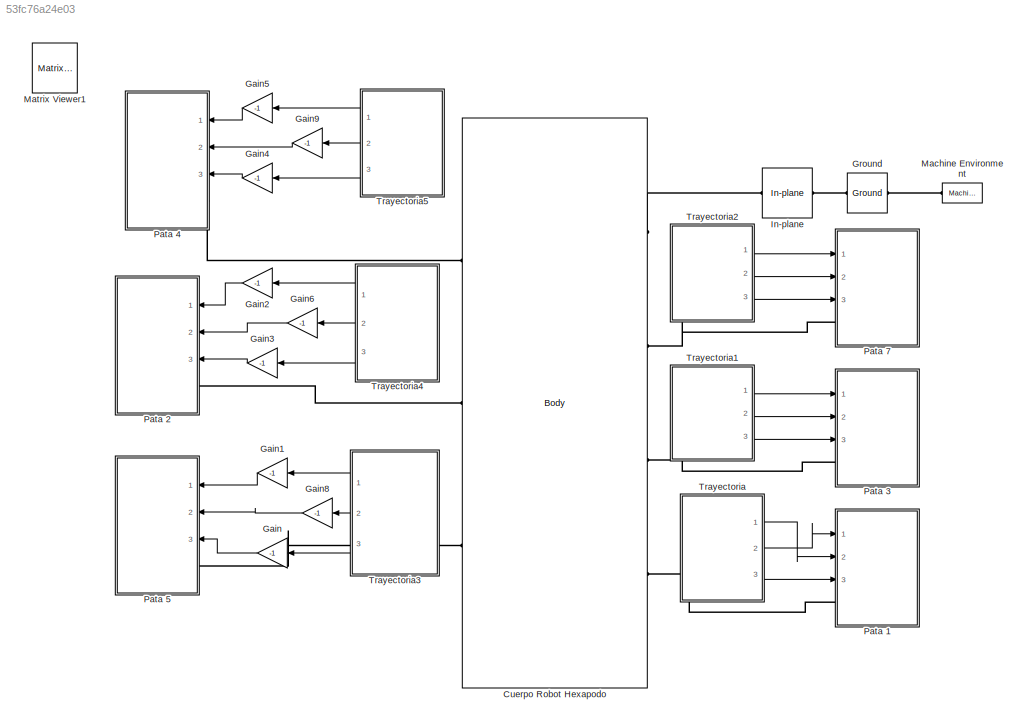
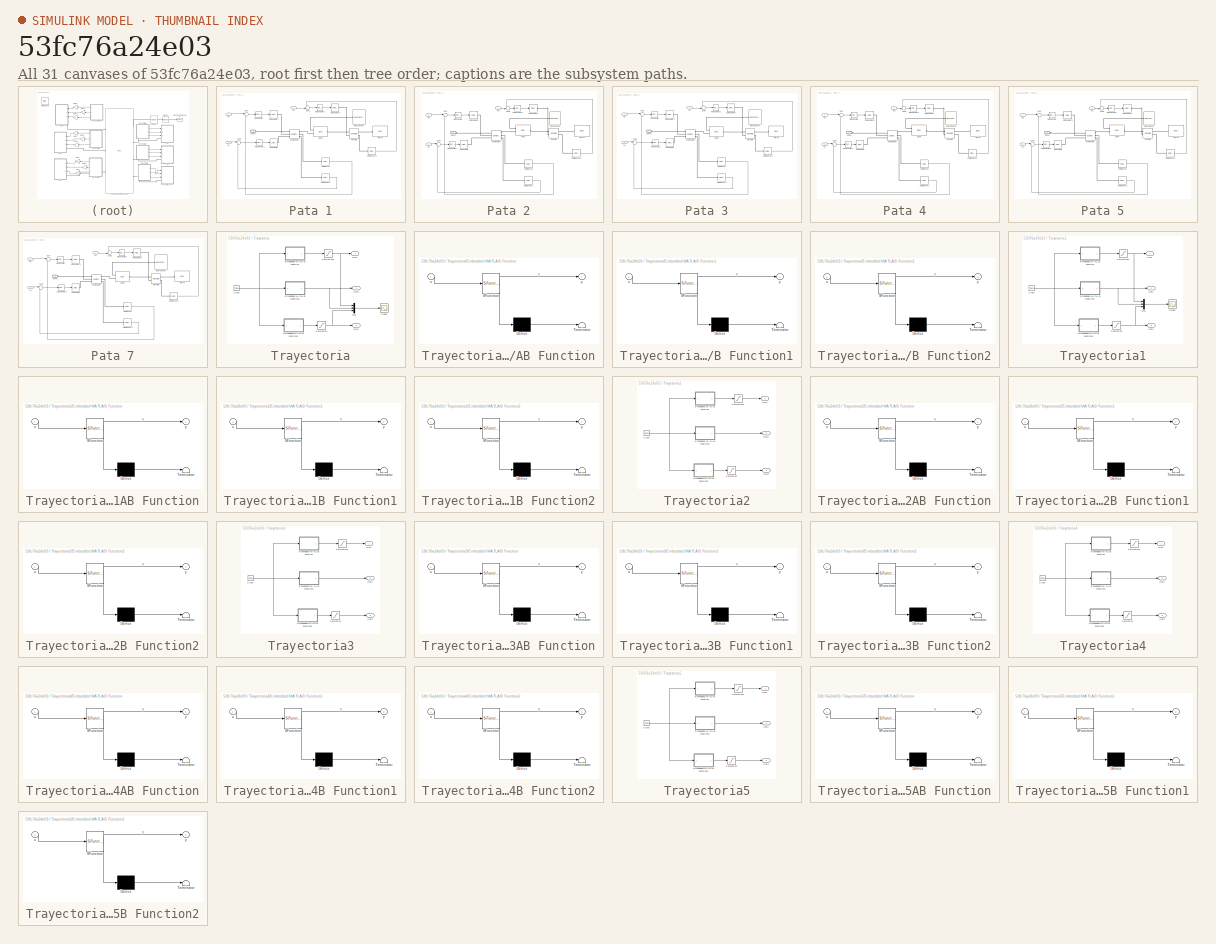
[diagram: thumbnail index - all 31 canvases of the model, root first then tree order]
MODEL slx_53fc76a24e03
KIND model
CONFIG AbsTol = auto
CONFIG EnableMultiTasking = on
CONFIG FixedStep = auto
CONFIG MaxStep = auto
CONFIG MinStep = auto
CONFIG RelTol = 1e-3
CONFIG SampleTimeConstraint = Unconstrained
CONFIG Solver = ode45
CONFIG SolverName = ode45
CONFIG StartTime = 0.0
CONFIG StopTime = inf
BLOCK [Reference] Cuerpo Robot Hexapodo  REF=mblibv1/Bodies/Body
  Ports = [0, 0, 0, 0, 0, 3, 4]
  SourceBlock = mblibv1/Bodies/Body
  SourceProductBaseCode = SS
  SourceProductName = Simscape
  SourceType = Body
BLOCK [Gain] Gain
  Gain = -1
  OutDataTypeStr = Inherit: Inherit via internal rule
  ParamDataTypeStr = Inherit: Inherit via internal rule
  SaturateOnIntegerOverflow = off
BLOCK [Gain] Gain1
  Gain = -1
  OutDataTypeStr = Inherit: Inherit via internal rule
  ParamDataTypeStr = Inherit: Inherit via internal rule
  SaturateOnIntegerOverflow = off
BLOCK [Gain] Gain2
  Gain = -1
  OutDataTypeStr = Inherit: Inherit via internal rule
  ParamDataTypeStr = Inherit: Inherit via internal rule
  SaturateOnIntegerOverflow = off
BLOCK [Gain] Gain3
  Gain = -1
  OutDataTypeStr = Inherit: Inherit via internal rule
  ParamDataTypeStr = Inherit: Inherit via internal rule
  SaturateOnIntegerOverflow = off
BLOCK [Gain] Gain4
  Gain = -1
  OutDataTypeStr = Inherit: Inherit via internal rule
  ParamDataTypeStr = Inherit: Inherit via internal rule
  SaturateOnIntegerOverflow = off
BLOCK [Gain] Gain5
  Gain = -1
  OutDataTypeStr = Inherit: Inherit via internal rule
  ParamDataTypeStr = Inherit: Inherit via internal rule
  SaturateOnIntegerOverflow = off
BLOCK [Gain] Gain6
  Gain = -1
  OutDataTypeStr = Inherit: Inherit via internal rule
  ParamDataTypeStr = Inherit: Inherit via internal rule
  SaturateOnIntegerOverflow = off
BLOCK [Gain] Gain8
  Gain = -1
  OutDataTypeStr = Inherit: Inherit via internal rule
  ParamDataTypeStr = Inherit: Inherit via internal rule
  SaturateOnIntegerOverflow = off
BLOCK [Gain] Gain9
  Gain = -1
  OutDataTypeStr = Inherit: Inherit via internal rule
  ParamDataTypeStr = Inherit: Inherit via internal rule
  SaturateOnIntegerOverflow = off
BLOCK [Reference] Ground  REF=mblibv1/Bodies/Ground
  Ports = [0, 0, 0, 0, 0, 1, 1]
  SourceBlock = mblibv1/Bodies/Ground
  SourceProductBaseCode = SS
  SourceProductName = Simscape
  SourceType = Ground
  UserDataPersistent = on
BLOCK [Reference] In-plane  REF=mblibv1/Joints/In-plane
  Ports = [0, 0, 0, 0, 0, 1, 1]
  SourceBlock = mblibv1/Joints/In-plane
  SourceProductBaseCode = SS
  SourceProductName = Simscape
  SourceType = In-plane
BLOCK [Reference] Machine Environment  REF=mblibv1/Bodies/Machine
Environment
  Ports = [0, 0, 0, 0, 0, 0, 1]
  SourceBlock = mblibv1/Bodies/Machine\nEnvironment
  SourceProductBaseCode = SS
  SourceProductName = Simscape
  SourceType = Machine Environment
BLOCK [Reference] Matrix Viewer1  REF=dspsnks4/Matrix
Viewer
  IOType = viewer
  Ports = [1]
  SourceBlock = dspsnks4/Matrix\nViewer
  SourceProductBaseCode = DS
  SourceProductName = DSP System Toolbox
  SourceType = Matrix Viewer
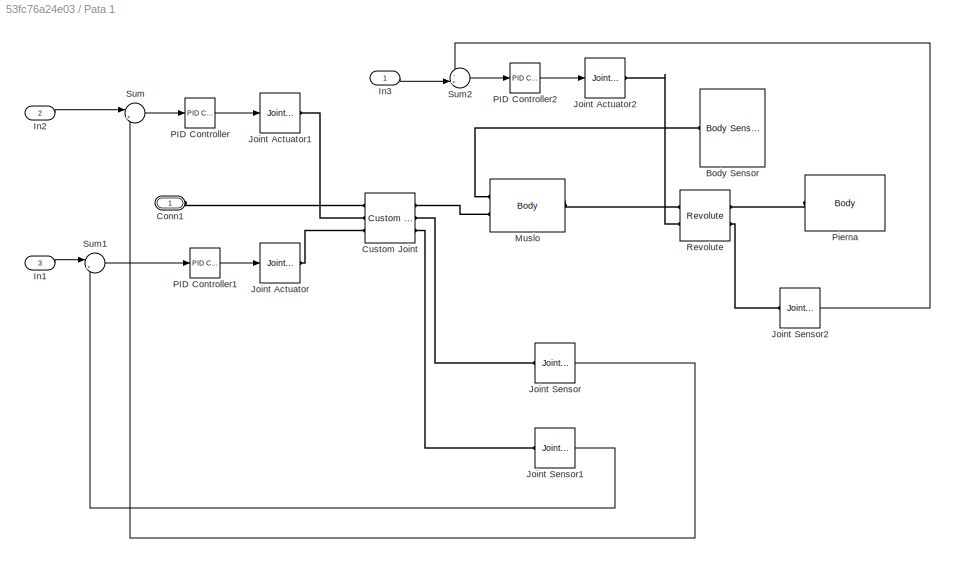
BLOCK [SubSystem] Pata 1
  Ports = [3, 0, 0, 0, 0, 1]
  RequestExecContextInheritance = off
BLOCK [Reference] Pata 1/Body Sensor  REF=mblibv1/Sensors & 
Actuators/Body Sensor
  Ports = [0, 2, 0, 0, 0, 1]
  SourceBlock = mblibv1/Sensors & \nActuators/Body Sensor
  SourceProductBaseCode = SS
  SourceProductName = Simscape
  SourceType = Body Sensor
BLOCK [PMIOPort] Pata 1/Conn1
  Side = Left
BLOCK [Reference] Pata 1/Custom Joint  REF=mblibv1/Joints/Custom Joint
  Ports = [0, 0, 0, 0, 0, 3, 3]
  SourceBlock = mblibv1/Joints/Custom Joint
  SourceProductBaseCode = SS
  SourceProductName = Simscape
  SourceType = Custom Joint
BLOCK [Inport] Pata 1/In1
  IconDisplay = Port number
  Port = 3
BLOCK [Inport] Pata 1/In2
  IconDisplay = Port number
  Port = 2
BLOCK [Inport] Pata 1/In3
  IconDisplay = Port number
BLOCK [Reference] Pata 1/Joint Actuator  REF=mblibv1/Sensors & 
Actuators/Joint Actuator
  Ports = [1, 0, 0, 0, 0, 0, 1]
  SourceBlock = mblibv1/Sensors & \nActuators/Joint Actuator
  SourceProductBaseCode = SS
  SourceProductName = Simscape
  SourceType = Joint Actuator
BLOCK [Reference] Pata 1/Joint Actuator1  REF=mblibv1/Sensors & 
Actuators/Joint Actuator
  Ports = [1, 0, 0, 0, 0, 0, 1]
  SourceBlock = mblibv1/Sensors & \nActuators/Joint Actuator
  SourceProductBaseCode = SS
  SourceProductName = Simscape
  SourceType = Joint Actuator
BLOCK [Reference] Pata 1/Joint Actuator2  REF=mblibv1/Sensors & 
Actuators/Joint Actuator
  Ports = [1, 0, 0, 0, 0, 0, 1]
  SourceBlock = mblibv1/Sensors & \nActuators/Joint Actuator
  SourceProductBaseCode = SS
  SourceProductName = Simscape
  SourceType = Joint Actuator
BLOCK [Reference] Pata 1/Joint Sensor  REF=mblibv1/Sensors & 
Actuators/Joint Sensor
  Ports = [0, 1, 0, 0, 0, 1]
  SourceBlock = mblibv1/Sensors & \nActuators/Joint Sensor
  SourceProductBaseCode = SS
  SourceProductName = Simscape
  SourceType = Joint Sensor
BLOCK [Reference] Pata 1/Joint Sensor1  REF=mblibv1/Sensors & 
Actuators/Joint Sensor
  Ports = [0, 1, 0, 0, 0, 1]
  SourceBlock = mblibv1/Sensors & \nActuators/Joint Sensor
  SourceProductBaseCode = SS
  SourceProductName = Simscape
  SourceType = Joint Sensor
BLOCK [Reference] Pata 1/Joint Sensor2  REF=mblibv1/Sensors & 
Actuators/Joint Sensor
  Ports = [0, 1, 0, 0, 0, 1]
  SourceBlock = mblibv1/Sensors & \nActuators/Joint Sensor
  SourceProductBaseCode = SS
  SourceProductName = Simscape
  SourceType = Joint Sensor
BLOCK [Reference] Pata 1/Muslo  REF=mblibv1/Bodies/Body
  Ports = [0, 0, 0, 0, 0, 2, 1]
  SourceBlock = mblibv1/Bodies/Body
  SourceProductBaseCode = SS
  SourceProductName = Simscape
  SourceType = Body
BLOCK [Reference] Pata 1/PID Controller  REF=simulink_need_slupdate/PID Controller
  Ports = [1, 1]
  SourceBlock = simulink_need_slupdate/PID Controller
  SourceProductBaseCode = SL
  SourceProductName = Simulink
  SourceType = PID Controller
BLOCK [Reference] Pata 1/PID Controller1  REF=simulink_need_slupdate/PID Controller
  Ports = [1, 1]
  SourceBlock = simulink_need_slupdate/PID Controller
  SourceProductBaseCode = SL
  SourceProductName = Simulink
  SourceType = PID Controller
BLOCK [Reference] Pata 1/PID Controller2  REF=simulink_need_slupdate/PID Controller
  Ports = [1, 1]
  SourceBlock = simulink_need_slupdate/PID Controller
  SourceProductBaseCode = SL
  SourceProductName = Simulink
  SourceType = PID Controller
BLOCK [Reference] Pata 1/Pierna  REF=mblibv1/Bodies/Body
  Ports = [0, 0, 0, 0, 0, 1]
  SourceBlock = mblibv1/Bodies/Body
  SourceProductBaseCode = SS
  SourceProductName = Simscape
  SourceType = Body
BLOCK [Reference] Pata 1/Revolute  REF=mblibv1/Joints/Revolute
  Ports = [0, 0, 0, 0, 0, 2, 2]
  SourceBlock = mblibv1/Joints/Revolute
  SourceProductBaseCode = SS
  SourceProductName = Simscape
  SourceType = Revolute
BLOCK [Sum] Pata 1/Sum
  IconShape = round
  InputSameDT = off
  Inputs = |+-
  OutDataTypeStr = Inherit: Inherit via internal rule
  Ports = [2, 1]
  SaturateOnIntegerOverflow = off
BLOCK [Sum] Pata 1/Sum1
  IconShape = round
  InputSameDT = off
  Inputs = |+-
  OutDataTypeStr = Inherit: Inherit via internal rule
  Ports = [2, 1]
  SaturateOnIntegerOverflow = off
BLOCK [Sum] Pata 1/Sum2
  IconShape = round
  InputSameDT = off
  Inputs = -+|
  OutDataTypeStr = Inherit: Inherit via internal rule
  Ports = [2, 1]
  SaturateOnIntegerOverflow = off
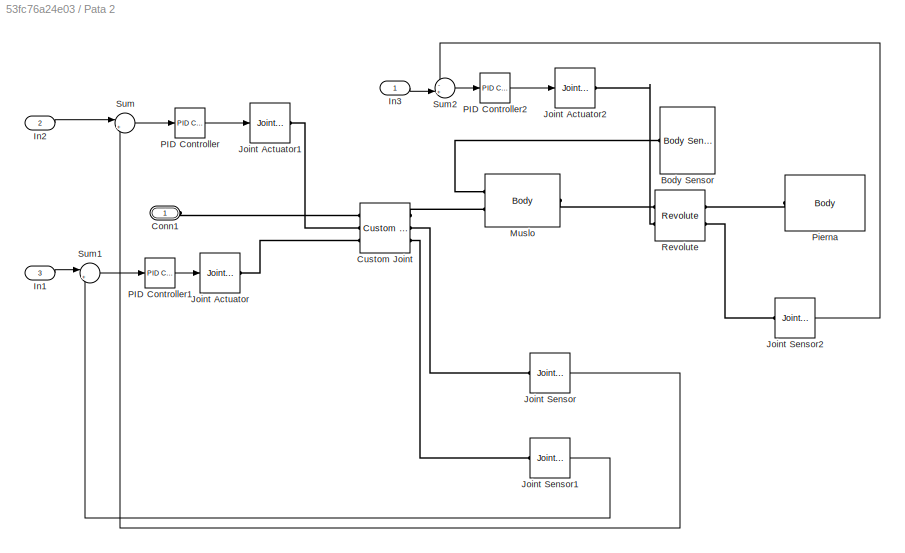
BLOCK [SubSystem] Pata 2
  Ports = [3, 0, 0, 0, 0, 1]
  RequestExecContextInheritance = off
BLOCK [Reference] Pata 2/Body Sensor  REF=mblibv1/Sensors & 
Actuators/Body Sensor
  Ports = [0, 2, 0, 0, 0, 1]
  SourceBlock = mblibv1/Sensors & \nActuators/Body Sensor
  SourceProductBaseCode = SS
  SourceProductName = Simscape
  SourceType = Body Sensor
BLOCK [PMIOPort] Pata 2/Conn1
  Side = Left
BLOCK [Reference] Pata 2/Custom Joint  REF=mblibv1/Joints/Custom Joint
  Ports = [0, 0, 0, 0, 0, 3, 3]
  SourceBlock = mblibv1/Joints/Custom Joint
  SourceProductBaseCode = SS
  SourceProductName = Simscape
  SourceType = Custom Joint
BLOCK [Inport] Pata 2/In1
  IconDisplay = Port number
  Port = 3
BLOCK [Inport] Pata 2/In2
  IconDisplay = Port number
  Port = 2
BLOCK [Inport] Pata 2/In3
  IconDisplay = Port number
BLOCK [Reference] Pata 2/Joint Actuator  REF=mblibv1/Sensors & 
Actuators/Joint Actuator
  Ports = [1, 0, 0, 0, 0, 0, 1]
  SourceBlock = mblibv1/Sensors & \nActuators/Joint Actuator
  SourceProductBaseCode = SS
  SourceProductName = Simscape
  SourceType = Joint Actuator
BLOCK [Reference] Pata 2/Joint Actuator1  REF=mblibv1/Sensors & 
Actuators/Joint Actuator
  Ports = [1, 0, 0, 0, 0, 0, 1]
  SourceBlock = mblibv1/Sensors & \nActuators/Joint Actuator
  SourceProductBaseCode = SS
  SourceProductName = Simscape
  SourceType = Joint Actuator
BLOCK [Reference] Pata 2/Joint Actuator2  REF=mblibv1/Sensors & 
Actuators/Joint Actuator
  Ports = [1, 0, 0, 0, 0, 0, 1]
  SourceBlock = mblibv1/Sensors & \nActuators/Joint Actuator
  SourceProductBaseCode = SS
  SourceProductName = Simscape
  SourceType = Joint Actuator
BLOCK [Reference] Pata 2/Joint Sensor  REF=mblibv1/Sensors & 
Actuators/Joint Sensor
  Ports = [0, 1, 0, 0, 0, 1]
  SourceBlock = mblibv1/Sensors & \nActuators/Joint Sensor
  SourceProductBaseCode = SS
  SourceProductName = Simscape
  SourceType = Joint Sensor
BLOCK [Reference] Pata 2/Joint Sensor1  REF=mblibv1/Sensors & 
Actuators/Joint Sensor
  Ports = [0, 1, 0, 0, 0, 1]
  SourceBlock = mblibv1/Sensors & \nActuators/Joint Sensor
  SourceProductBaseCode = SS
  SourceProductName = Simscape
  SourceType = Joint Sensor
BLOCK [Reference] Pata 2/Joint Sensor2  REF=mblibv1/Sensors & 
Actuators/Joint Sensor
  Ports = [0, 1, 0, 0, 0, 1]
  SourceBlock = mblibv1/Sensors & \nActuators/Joint Sensor
  SourceProductBaseCode = SS
  SourceProductName = Simscape
  SourceType = Joint Sensor
BLOCK [Reference] Pata 2/Muslo  REF=mblibv1/Bodies/Body
  Ports = [0, 0, 0, 0, 0, 2, 1]
  SourceBlock = mblibv1/Bodies/Body
  SourceProductBaseCode = SS
  SourceProductName = Simscape
  SourceType = Body
BLOCK [Reference] Pata 2/PID Controller  REF=simulink_need_slupdate/PID Controller
  Ports = [1, 1]
  SourceBlock = simulink_need_slupdate/PID Controller
  SourceProductBaseCode = SL
  SourceProductName = Simulink
  SourceType = PID Controller
BLOCK [Reference] Pata 2/PID Controller1  REF=simulink_need_slupdate/PID Controller
  Ports = [1, 1]
  SourceBlock = simulink_need_slupdate/PID Controller
  SourceProductBaseCode = SL
  SourceProductName = Simulink
  SourceType = PID Controller
BLOCK [Reference] Pata 2/PID Controller2  REF=simulink_need_slupdate/PID Controller
  Ports = [1, 1]
  SourceBlock = simulink_need_slupdate/PID Controller
  SourceProductBaseCode = SL
  SourceProductName = Simulink
  SourceType = PID Controller
BLOCK [Reference] Pata 2/Pierna  REF=mblibv1/Bodies/Body
  Ports = [0, 0, 0, 0, 0, 1]
  SourceBlock = mblibv1/Bodies/Body
  SourceProductBaseCode = SS
  SourceProductName = Simscape
  SourceType = Body
BLOCK [Reference] Pata 2/Revolute  REF=mblibv1/Joints/Revolute
  Ports = [0, 0, 0, 0, 0, 2, 2]
  SourceBlock = mblibv1/Joints/Revolute
  SourceProductBaseCode = SS
  SourceProductName = Simscape
  SourceType = Revolute
BLOCK [Sum] Pata 2/Sum
  IconShape = round
  InputSameDT = off
  Inputs = |+-
  OutDataTypeStr = Inherit: Inherit via internal rule
  Ports = [2, 1]
  SaturateOnIntegerOverflow = off
BLOCK [Sum] Pata 2/Sum1
  IconShape = round
  InputSameDT = off
  Inputs = |+-
  OutDataTypeStr = Inherit: Inherit via internal rule
  Ports = [2, 1]
  SaturateOnIntegerOverflow = off
BLOCK [Sum] Pata 2/Sum2
  IconShape = round
  InputSameDT = off
  Inputs = -+|
  OutDataTypeStr = Inherit: Inherit via internal rule
  Ports = [2, 1]
  SaturateOnIntegerOverflow = off
BLOCK [SubSystem] Pata 3
  Ports = [3, 0, 0, 0, 0, 1]
  RequestExecContextInheritance = off
BLOCK [Reference] Pata 3/Body Sensor  REF=mblibv1/Sensors & 
Actuators/Body Sensor
  Ports = [0, 2, 0, 0, 0, 1]
  SourceBlock = mblibv1/Sensors & \nActuators/Body Sensor
  SourceProductBaseCode = SS
  SourceProductName = Simscape
  SourceType = Body Sensor
BLOCK [PMIOPort] Pata 3/Conn1
  Side = Left
BLOCK [Reference] Pata 3/Custom Joint  REF=mblibv1/Joints/Custom Joint
  Ports = [0, 0, 0, 0, 0, 3, 3]
  SourceBlock = mblibv1/Joints/Custom Joint
  SourceProductBaseCode = SS
  SourceProductName = Simscape
  SourceType = Custom Joint
BLOCK [Inport] Pata 3/In1
  IconDisplay = Port number
  Port = 3
BLOCK [Inport] Pata 3/In2
  IconDisplay = Port number
  Port = 2
BLOCK [Inport] Pata 3/In3
  IconDisplay = Port number
BLOCK [Reference] Pata 3/Joint Actuator  REF=mblibv1/Sensors & 
Actuators/Joint Actuator
  Ports = [1, 0, 0, 0, 0, 0, 1]
  SourceBlock = mblibv1/Sensors & \nActuators/Joint Actuator
  SourceProductBaseCode = SS
  SourceProductName = Simscape
  SourceType = Joint Actuator
BLOCK [Reference] Pata 3/Joint Actuator1  REF=mblibv1/Sensors & 
Actuators/Joint Actuator
  Ports = [1, 0, 0, 0, 0, 0, 1]
  SourceBlock = mblibv1/Sensors & \nActuators/Joint Actuator
  SourceProductBaseCode = SS
  SourceProductName = Simscape
  SourceType = Joint Actuator
BLOCK [Reference] Pata 3/Joint Actuator2  REF=mblibv1/Sensors & 
Actuators/Joint Actuator
  Ports = [1, 0, 0, 0, 0, 0, 1]
  SourceBlock = mblibv1/Sensors & \nActuators/Joint Actuator
  SourceProductBaseCode = SS
  SourceProductName = Simscape
  SourceType = Joint Actuator
BLOCK [Reference] Pata 3/Joint Sensor  REF=mblibv1/Sensors & 
Actuators/Joint Sensor
  Ports = [0, 1, 0, 0, 0, 1]
  SourceBlock = mblibv1/Sensors & \nActuators/Joint Sensor
  SourceProductBaseCode = SS
  SourceProductName = Simscape
  SourceType = Joint Sensor
BLOCK [Reference] Pata 3/Joint Sensor1  REF=mblibv1/Sensors & 
Actuators/Joint Sensor
  Ports = [0, 1, 0, 0, 0, 1]
  SourceBlock = mblibv1/Sensors & \nActuators/Joint Sensor
  SourceProductBaseCode = SS
  SourceProductName = Simscape
  SourceType = Joint Sensor
BLOCK [Reference] Pata 3/Joint Sensor2  REF=mblibv1/Sensors & 
Actuators/Joint Sensor
  Ports = [0, 1, 0, 0, 0, 1]
  SourceBlock = mblibv1/Sensors & \nActuators/Joint Sensor
  SourceProductBaseCode = SS
  SourceProductName = Simscape
  SourceType = Joint Sensor
BLOCK [Reference] Pata 3/Muslo  REF=mblibv1/Bodies/Body
  Ports = [0, 0, 0, 0, 0, 2, 1]
  SourceBlock = mblibv1/Bodies/Body
  SourceProductBaseCode = SS
  SourceProductName = Simscape
  SourceType = Body
BLOCK [Reference] Pata 3/PID Controller  REF=simulink_need_slupdate/PID Controller
  Ports = [1, 1]
  SourceBlock = simulink_need_slupdate/PID Controller
  SourceProductBaseCode = SL
  SourceProductName = Simulink
  SourceType = PID Controller
BLOCK [Reference] Pata 3/PID Controller1  REF=simulink_need_slupdate/PID Controller
  Ports = [1, 1]
  SourceBlock = simulink_need_slupdate/PID Controller
  SourceProductBaseCode = SL
  SourceProductName = Simulink
  SourceType = PID Controller
BLOCK [Reference] Pata 3/PID Controller2  REF=simulink_need_slupdate/PID Controller
  Ports = [1, 1]
  SourceBlock = simulink_need_slupdate/PID Controller
  SourceProductBaseCode = SL
  SourceProductName = Simulink
  SourceType = PID Controller
BLOCK [Reference] Pata 3/Pierna  REF=mblibv1/Bodies/Body
  Ports = [0, 0, 0, 0, 0, 1]
  SourceBlock = mblibv1/Bodies/Body
  SourceProductBaseCode = SS
  SourceProductName = Simscape
  SourceType = Body
BLOCK [Reference] Pata 3/Revolute  REF=mblibv1/Joints/Revolute
  Ports = [0, 0, 0, 0, 0, 2, 2]
  SourceBlock = mblibv1/Joints/Revolute
  SourceProductBaseCode = SS
  SourceProductName = Simscape
  SourceType = Revolute
BLOCK [Sum] Pata 3/Sum
  IconShape = round
  InputSameDT = off
  Inputs = |+-
  OutDataTypeStr = Inherit: Inherit via internal rule
  Ports = [2, 1]
  SaturateOnIntegerOverflow = off
BLOCK [Sum] Pata 3/Sum1
  IconShape = round
  InputSameDT = off
  Inputs = |+-
  OutDataTypeStr = Inherit: Inherit via internal rule
  Ports = [2, 1]
  SaturateOnIntegerOverflow = off
BLOCK [Sum] Pata 3/Sum2
  IconShape = round
  InputSameDT = off
  Inputs = -+|
  OutDataTypeStr = Inherit: Inherit via internal rule
  Ports = [2, 1]
  SaturateOnIntegerOverflow = off
BLOCK [SubSystem] Pata 4
  Ports = [3, 0, 0, 0, 0, 1]
  RequestExecContextInheritance = off
BLOCK [Reference] Pata 4/Body Sensor  REF=mblibv1/Sensors & 
Actuators/Body Sensor
  Ports = [0, 2, 0, 0, 0, 1]
  SourceBlock = mblibv1/Sensors & \nActuators/Body Sensor
  SourceProductBaseCode = SS
  SourceProductName = Simscape
  SourceType = Body Sensor
BLOCK [PMIOPort] Pata 4/Conn1
  Side = Left
BLOCK [Reference] Pata 4/Custom Joint  REF=mblibv1/Joints/Custom Joint
  Ports = [0, 0, 0, 0, 0, 3, 3]
  SourceBlock = mblibv1/Joints/Custom Joint
  SourceProductBaseCode = SS
  SourceProductName = Simscape
  SourceType = Custom Joint
BLOCK [Inport] Pata 4/In1
  IconDisplay = Port number
  Port = 3
BLOCK [Inport] Pata 4/In2
  IconDisplay = Port number
  Port = 2
BLOCK [Inport] Pata 4/In3
  IconDisplay = Port number
BLOCK [Reference] Pata 4/Joint Actuator  REF=mblibv1/Sensors & 
Actuators/Joint Actuator
  Ports = [1, 0, 0, 0, 0, 0, 1]
  SourceBlock = mblibv1/Sensors & \nActuators/Joint Actuator
  SourceProductBaseCode = SS
  SourceProductName = Simscape
  SourceType = Joint Actuator
BLOCK [Reference] Pata 4/Joint Actuator1  REF=mblibv1/Sensors & 
Actuators/Joint Actuator
  Ports = [1, 0, 0, 0, 0, 0, 1]
  SourceBlock = mblibv1/Sensors & \nActuators/Joint Actuator
  SourceProductBaseCode = SS
  SourceProductName = Simscape
  SourceType = Joint Actuator
BLOCK [Reference] Pata 4/Joint Actuator2  REF=mblibv1/Sensors & 
Actuators/Joint Actuator
  Ports = [1, 0, 0, 0, 0, 0, 1]
  SourceBlock = mblibv1/Sensors & \nActuators/Joint Actuator
  SourceProductBaseCode = SS
  SourceProductName = Simscape
  SourceType = Joint Actuator
BLOCK [Reference] Pata 4/Joint Sensor  REF=mblibv1/Sensors & 
Actuators/Joint Sensor
  Ports = [0, 1, 0, 0, 0, 1]
  SourceBlock = mblibv1/Sensors & \nActuators/Joint Sensor
  SourceProductBaseCode = SS
  SourceProductName = Simscape
  SourceType = Joint Sensor
BLOCK [Reference] Pata 4/Joint Sensor1  REF=mblibv1/Sensors & 
Actuators/Joint Sensor
  Ports = [0, 1, 0, 0, 0, 1]
  SourceBlock = mblibv1/Sensors & \nActuators/Joint Sensor
  SourceProductBaseCode = SS
  SourceProductName = Simscape
  SourceType = Joint Sensor
BLOCK [Reference] Pata 4/Joint Sensor2  REF=mblibv1/Sensors & 
Actuators/Joint Sensor
  Ports = [0, 1, 0, 0, 0, 1]
  SourceBlock = mblibv1/Sensors & \nActuators/Joint Sensor
  SourceProductBaseCode = SS
  SourceProductName = Simscape
  SourceType = Joint Sensor
BLOCK [Reference] Pata 4/Muslo  REF=mblibv1/Bodies/Body
  Ports = [0, 0, 0, 0, 0, 2, 1]
  SourceBlock = mblibv1/Bodies/Body
  SourceProductBaseCode = SS
  SourceProductName = Simscape
  SourceType = Body
BLOCK [Reference] Pata 4/PID Controller  REF=simulink_need_slupdate/PID Controller
  Ports = [1, 1]
  SourceBlock = simulink_need_slupdate/PID Controller
  SourceProductBaseCode = SL
  SourceProductName = Simulink
  SourceType = PID Controller
BLOCK [Reference] Pata 4/PID Controller1  REF=simulink_need_slupdate/PID Controller
  Ports = [1, 1]
  SourceBlock = simulink_need_slupdate/PID Controller
  SourceProductBaseCode = SL
  SourceProductName = Simulink
  SourceType = PID Controller
BLOCK [Reference] Pata 4/PID Controller2  REF=simulink_need_slupdate/PID Controller
  Ports = [1, 1]
  SourceBlock = simulink_need_slupdate/PID Controller
  SourceProductBaseCode = SL
  SourceProductName = Simulink
  SourceType = PID Controller
BLOCK [Reference] Pata 4/Pierna  REF=mblibv1/Bodies/Body
  Ports = [0, 0, 0, 0, 0, 1]
  SourceBlock = mblibv1/Bodies/Body
  SourceProductBaseCode = SS
  SourceProductName = Simscape
  SourceType = Body
BLOCK [Reference] Pata 4/Revolute  REF=mblibv1/Joints/Revolute
  Ports = [0, 0, 0, 0, 0, 2, 2]
  SourceBlock = mblibv1/Joints/Revolute
  SourceProductBaseCode = SS
  SourceProductName = Simscape
  SourceType = Revolute
BLOCK [Sum] Pata 4/Sum
  IconShape = round
  InputSameDT = off
  Inputs = |+-
  OutDataTypeStr = Inherit: Inherit via internal rule
  Ports = [2, 1]
  SaturateOnIntegerOverflow = off
BLOCK [Sum] Pata 4/Sum1
  IconShape = round
  InputSameDT = off
  Inputs = |+-
  OutDataTypeStr = Inherit: Inherit via internal rule
  Ports = [2, 1]
  SaturateOnIntegerOverflow = off
BLOCK [Sum] Pata 4/Sum2
  IconShape = round
  InputSameDT = off
  Inputs = -+|
  OutDataTypeStr = Inherit: Inherit via internal rule
  Ports = [2, 1]
  SaturateOnIntegerOverflow = off
BLOCK [SubSystem] Pata 5
  Ports = [3, 0, 0, 0, 0, 1]
  RequestExecContextInheritance = off
BLOCK [Reference] Pata 5/Body Sensor  REF=mblibv1/Sensors & 
Actuators/Body Sensor
  Ports = [0, 2, 0, 0, 0, 1]
  SourceBlock = mblibv1/Sensors & \nActuators/Body Sensor
  SourceProductBaseCode = SS
  SourceProductName = Simscape
  SourceType = Body Sensor
BLOCK [PMIOPort] Pata 5/Conn1
  Side = Left
BLOCK [Reference] Pata 5/Custom Joint  REF=mblibv1/Joints/Custom Joint
  Ports = [0, 0, 0, 0, 0, 3, 3]
  SourceBlock = mblibv1/Joints/Custom Joint
  SourceProductBaseCode = SS
  SourceProductName = Simscape
  SourceType = Custom Joint
BLOCK [Inport] Pata 5/In1
  IconDisplay = Port number
  Port = 3
BLOCK [Inport] Pata 5/In2
  IconDisplay = Port number
  Port = 2
BLOCK [Inport] Pata 5/In3
  IconDisplay = Port number
BLOCK [Reference] Pata 5/Joint Actuator  REF=mblibv1/Sensors & 
Actuators/Joint Actuator
  Ports = [1, 0, 0, 0, 0, 0, 1]
  SourceBlock = mblibv1/Sensors & \nActuators/Joint Actuator
  SourceProductBaseCode = SS
  SourceProductName = Simscape
  SourceType = Joint Actuator
BLOCK [Reference] Pata 5/Joint Actuator1  REF=mblibv1/Sensors & 
Actuators/Joint Actuator
  Ports = [1, 0, 0, 0, 0, 0, 1]
  SourceBlock = mblibv1/Sensors & \nActuators/Joint Actuator
  SourceProductBaseCode = SS
  SourceProductName = Simscape
  SourceType = Joint Actuator
BLOCK [Reference] Pata 5/Joint Actuator2  REF=mblibv1/Sensors & 
Actuators/Joint Actuator
  Ports = [1, 0, 0, 0, 0, 0, 1]
  SourceBlock = mblibv1/Sensors & \nActuators/Joint Actuator
  SourceProductBaseCode = SS
  SourceProductName = Simscape
  SourceType = Joint Actuator
BLOCK [Reference] Pata 5/Joint Sensor  REF=mblibv1/Sensors & 
Actuators/Joint Sensor
  Ports = [0, 1, 0, 0, 0, 1]
  SourceBlock = mblibv1/Sensors & \nActuators/Joint Sensor
  SourceProductBaseCode = SS
  SourceProductName = Simscape
  SourceType = Joint Sensor
BLOCK [Reference] Pata 5/Joint Sensor1  REF=mblibv1/Sensors & 
Actuators/Joint Sensor
  Ports = [0, 1, 0, 0, 0, 1]
  SourceBlock = mblibv1/Sensors & \nActuators/Joint Sensor
  SourceProductBaseCode = SS
  SourceProductName = Simscape
  SourceType = Joint Sensor
BLOCK [Reference] Pata 5/Joint Sensor2  REF=mblibv1/Sensors & 
Actuators/Joint Sensor
  Ports = [0, 1, 0, 0, 0, 1]
  SourceBlock = mblibv1/Sensors & \nActuators/Joint Sensor
  SourceProductBaseCode = SS
  SourceProductName = Simscape
  SourceType = Joint Sensor
BLOCK [Reference] Pata 5/Muslo  REF=mblibv1/Bodies/Body
  Ports = [0, 0, 0, 0, 0, 2, 1]
  SourceBlock = mblibv1/Bodies/Body
  SourceProductBaseCode = SS
  SourceProductName = Simscape
  SourceType = Body
BLOCK [Reference] Pata 5/PID Controller  REF=simulink_need_slupdate/PID Controller
  Ports = [1, 1]
  SourceBlock = simulink_need_slupdate/PID Controller
  SourceProductBaseCode = SL
  SourceProductName = Simulink
  SourceType = PID Controller
BLOCK [Reference] Pata 5/PID Controller1  REF=simulink_need_slupdate/PID Controller
  Ports = [1, 1]
  SourceBlock = simulink_need_slupdate/PID Controller
  SourceProductBaseCode = SL
  SourceProductName = Simulink
  SourceType = PID Controller
BLOCK [Reference] Pata 5/PID Controller2  REF=simulink_need_slupdate/PID Controller
  Ports = [1, 1]
  SourceBlock = simulink_need_slupdate/PID Controller
  SourceProductBaseCode = SL
  SourceProductName = Simulink
  SourceType = PID Controller
BLOCK [Reference] Pata 5/Pierna  REF=mblibv1/Bodies/Body
  Ports = [0, 0, 0, 0, 0, 1]
  SourceBlock = mblibv1/Bodies/Body
  SourceProductBaseCode = SS
  SourceProductName = Simscape
  SourceType = Body
BLOCK [Reference] Pata 5/Revolute  REF=mblibv1/Joints/Revolute
  Ports = [0, 0, 0, 0, 0, 2, 2]
  SourceBlock = mblibv1/Joints/Revolute
  SourceProductBaseCode = SS
  SourceProductName = Simscape
  SourceType = Revolute
BLOCK [Sum] Pata 5/Sum
  IconShape = round
  InputSameDT = off
  Inputs = |+-
  OutDataTypeStr = Inherit: Inherit via internal rule
  Ports = [2, 1]
  SaturateOnIntegerOverflow = off
BLOCK [Sum] Pata 5/Sum1
  IconShape = round
  InputSameDT = off
  Inputs = |+-
  OutDataTypeStr = Inherit: Inherit via internal rule
  Ports = [2, 1]
  SaturateOnIntegerOverflow = off
BLOCK [Sum] Pata 5/Sum2
  IconShape = round
  InputSameDT = off
  Inputs = -+|
  OutDataTypeStr = Inherit: Inherit via internal rule
  Ports = [2, 1]
  SaturateOnIntegerOverflow = off
BLOCK [SubSystem] Pata 7
  Ports = [3, 0, 0, 0, 0, 1]
  RequestExecContextInheritance = off
BLOCK [Reference] Pata 7/Body Sensor  REF=mblibv1/Sensors & 
Actuators/Body Sensor
  Ports = [0, 2, 0, 0, 0, 1]
  SourceBlock = mblibv1/Sensors & \nActuators/Body Sensor
  SourceProductBaseCode = SS
  SourceProductName = Simscape
  SourceType = Body Sensor
BLOCK [PMIOPort] Pata 7/Conn1
  Side = Left
BLOCK [Reference] Pata 7/Custom Joint  REF=mblibv1/Joints/Custom Joint
  Ports = [0, 0, 0, 0, 0, 3, 3]
  SourceBlock = mblibv1/Joints/Custom Joint
  SourceProductBaseCode = SS
  SourceProductName = Simscape
  SourceType = Custom Joint
BLOCK [Inport] Pata 7/In1
  IconDisplay = Port number
  Port = 3
BLOCK [Inport] Pata 7/In2
  IconDisplay = Port number
  Port = 2
BLOCK [Inport] Pata 7/In3
  IconDisplay = Port number
BLOCK [Reference] Pata 7/Joint Actuator  REF=mblibv1/Sensors & 
Actuators/Joint Actuator
  Ports = [1, 0, 0, 0, 0, 0, 1]
  SourceBlock = mblibv1/Sensors & \nActuators/Joint Actuator
  SourceProductBaseCode = SS
  SourceProductName = Simscape
  SourceType = Joint Actuator
BLOCK [Reference] Pata 7/Joint Actuator1  REF=mblibv1/Sensors & 
Actuators/Joint Actuator
  Ports = [1, 0, 0, 0, 0, 0, 1]
  SourceBlock = mblibv1/Sensors & \nActuators/Joint Actuator
  SourceProductBaseCode = SS
  SourceProductName = Simscape
  SourceType = Joint Actuator
BLOCK [Reference] Pata 7/Joint Actuator2  REF=mblibv1/Sensors & 
Actuators/Joint Actuator
  Ports = [1, 0, 0, 0, 0, 0, 1]
  SourceBlock = mblibv1/Sensors & \nActuators/Joint Actuator
  SourceProductBaseCode = SS
  SourceProductName = Simscape
  SourceType = Joint Actuator
BLOCK [Reference] Pata 7/Joint Sensor  REF=mblibv1/Sensors & 
Actuators/Joint Sensor
  Ports = [0, 1, 0, 0, 0, 1]
  SourceBlock = mblibv1/Sensors & \nActuators/Joint Sensor
  SourceProductBaseCode = SS
  SourceProductName = Simscape
  SourceType = Joint Sensor
BLOCK [Reference] Pata 7/Joint Sensor1  REF=mblibv1/Sensors & 
Actuators/Joint Sensor
  Ports = [0, 1, 0, 0, 0, 1]
  SourceBlock = mblibv1/Sensors & \nActuators/Joint Sensor
  SourceProductBaseCode = SS
  SourceProductName = Simscape
  SourceType = Joint Sensor
BLOCK [Reference] Pata 7/Joint Sensor2  REF=mblibv1/Sensors & 
Actuators/Joint Sensor
  Ports = [0, 1, 0, 0, 0, 1]
  SourceBlock = mblibv1/Sensors & \nActuators/Joint Sensor
  SourceProductBaseCode = SS
  SourceProductName = Simscape
  SourceType = Joint Sensor
BLOCK [Reference] Pata 7/Muslo  REF=mblibv1/Bodies/Body
  Ports = [0, 0, 0, 0, 0, 2, 1]
  SourceBlock = mblibv1/Bodies/Body
  SourceProductBaseCode = SS
  SourceProductName = Simscape
  SourceType = Body
BLOCK [Reference] Pata 7/PID Controller  REF=simulink_need_slupdate/PID Controller
  Ports = [1, 1]
  SourceBlock = simulink_need_slupdate/PID Controller
  SourceProductBaseCode = SL
  SourceProductName = Simulink
  SourceType = PID Controller
BLOCK [Reference] Pata 7/PID Controller1  REF=simulink_need_slupdate/PID Controller
  Ports = [1, 1]
  SourceBlock = simulink_need_slupdate/PID Controller
  SourceProductBaseCode = SL
  SourceProductName = Simulink
  SourceType = PID Controller
BLOCK [Reference] Pata 7/PID Controller2  REF=simulink_need_slupdate/PID Controller
  Ports = [1, 1]
  SourceBlock = simulink_need_slupdate/PID Controller
  SourceProductBaseCode = SL
  SourceProductName = Simulink
  SourceType = PID Controller
BLOCK [Reference] Pata 7/Pierna  REF=mblibv1/Bodies/Body
  Ports = [0, 0, 0, 0, 0, 1]
  SourceBlock = mblibv1/Bodies/Body
  SourceProductBaseCode = SS
  SourceProductName = Simscape
  SourceType = Body
BLOCK [Reference] Pata 7/Revolute  REF=mblibv1/Joints/Revolute
  Ports = [0, 0, 0, 0, 0, 2, 2]
  SourceBlock = mblibv1/Joints/Revolute
  SourceProductBaseCode = SS
  SourceProductName = Simscape
  SourceType = Revolute
BLOCK [Sum] Pata 7/Sum
  IconShape = round
  InputSameDT = off
  Inputs = |+-
  OutDataTypeStr = Inherit: Inherit via internal rule
  Ports = [2, 1]
  SaturateOnIntegerOverflow = off
BLOCK [Sum] Pata 7/Sum1
  IconShape = round
  InputSameDT = off
  Inputs = |+-
  OutDataTypeStr = Inherit: Inherit via internal rule
  Ports = [2, 1]
  SaturateOnIntegerOverflow = off
BLOCK [Sum] Pata 7/Sum2
  IconShape = round
  InputSameDT = off
  Inputs = -+|
  OutDataTypeStr = Inherit: Inherit via internal rule
  Ports = [2, 1]
  SaturateOnIntegerOverflow = off
BLOCK [SubSystem] Trayectoria
  Ports = [0, 3]
  RequestExecContextInheritance = off
BLOCK [Clock] Trayectoria/Clock
  Decimation = 20
BLOCK [SubSystem] Trayectoria/Embedded MATLAB Function
  ErrorFcn = Stateflow.Translate.translate
  PermitHierarchicalResolution = ExplicitOnly
  Ports = [1, 1]
  RequestExecContextInheritance = off
  SFBlockType = MATLAB Function
  TreatAsAtomicUnit = on
BLOCK [Demux] Trayectoria/Embedded MATLAB Function/ Demux 
  Outputs = 1
  Ports = [1, 1]
BLOCK [S-Function] Trayectoria/Embedded MATLAB Function/ SFunction 
  EnableBusSupport = on
  FunctionName = sf_sfun
  PortCounts = [1 2]
  Ports = [1, 2]
  SFcnIsStateOwnerBlock = off
  SFunctionDeploymentMode = off
  Tag = Stateflow S-Function Hexapodo 2
BLOCK [Terminator] Trayectoria/Embedded MATLAB Function/ Terminator 
BLOCK [Inport] Trayectoria/Embedded MATLAB Function/u
  IconDisplay = Port number
BLOCK [Outport] Trayectoria/Embedded MATLAB Function/y
  IconDisplay = Port number
BLOCK [SubSystem] Trayectoria/Embedded MATLAB Function1
  ErrorFcn = Stateflow.Translate.translate
  PermitHierarchicalResolution = ExplicitOnly
  Ports = [1, 1]
  RequestExecContextInheritance = off
  SFBlockType = MATLAB Function
  TreatAsAtomicUnit = on
BLOCK [Demux] Trayectoria/Embedded MATLAB Function1/ Demux 
  Outputs = 1
  Ports = [1, 1]
BLOCK [S-Function] Trayectoria/Embedded MATLAB Function1/ SFunction 
  EnableBusSupport = on
  FunctionName = sf_sfun
  PortCounts = [1 2]
  Ports = [1, 2]
  SFcnIsStateOwnerBlock = off
  SFunctionDeploymentMode = off
  Tag = Stateflow S-Function Hexapodo 1
BLOCK [Terminator] Trayectoria/Embedded MATLAB Function1/ Terminator 
BLOCK [Inport] Trayectoria/Embedded MATLAB Function1/u
  IconDisplay = Port number
BLOCK [Outport] Trayectoria/Embedded MATLAB Function1/y
  IconDisplay = Port number
BLOCK [SubSystem] Trayectoria/Embedded MATLAB Function2
  ErrorFcn = Stateflow.Translate.translate
  PermitHierarchicalResolution = ExplicitOnly
  Ports = [1, 1]
  RequestExecContextInheritance = off
  SFBlockType = MATLAB Function
  TreatAsAtomicUnit = on
BLOCK [Demux] Trayectoria/Embedded MATLAB Function2/ Demux 
  Outputs = 1
  Ports = [1, 1]
BLOCK [S-Function] Trayectoria/Embedded MATLAB Function2/ SFunction 
  EnableBusSupport = on
  FunctionName = sf_sfun
  PortCounts = [1 2]
  Ports = [1, 2]
  SFcnIsStateOwnerBlock = off
  SFunctionDeploymentMode = off
  Tag = Stateflow S-Function Hexapodo 3
BLOCK [Terminator] Trayectoria/Embedded MATLAB Function2/ Terminator 
BLOCK [Inport] Trayectoria/Embedded MATLAB Function2/u
  IconDisplay = Port number
BLOCK [Outport] Trayectoria/Embedded MATLAB Function2/y
  IconDisplay = Port number
BLOCK [Mux] Trayectoria/Mux
  DisplayOption = bar
  Inputs = 3
  Ports = [3, 1]
BLOCK [Outport] Trayectoria/Out1
  IconDisplay = Port number
BLOCK [Outport] Trayectoria/Out2
  IconDisplay = Port number
  Port = 2
BLOCK [Outport] Trayectoria/Out3
  IconDisplay = Port number
  Port = 3
BLOCK [Saturate] Trayectoria/Saturation
  InputPortMap = u0
  LowerLimit = 0
  Ports = [1, 1]
  UpperLimit = 30
BLOCK [Saturate] Trayectoria/Saturation1
  InputPortMap = u0
  LowerLimit = 0
  Ports = [1, 1]
  UpperLimit = 30
BLOCK [Scope] Trayectoria/Scope
  Floating = off
  NumInputPorts = 1
  Ports = [1]
  ScopeSpecificationString = Simulink.scopes.TimeScopeBlockCfg('CurrentConfiguration', extmgr.ConfigurationSet(extmgr.Configuration('Core','General UI',true),extmgr.Configuration('Core','Source UI',true),extmgr.Configuration('Sources','WiredSimulink',true,'DataLoggingVariableName','ScopeData2','DataLoggingSaveFormat','StructureWithTime','DataLoggingLimitDataPoints',true,'DataLoggingDecimation','1','DataLoggingDecimateData',tr...<+909ch>
BLOCK [SubSystem] Trayectoria1
  Ports = [0, 3]
  RequestExecContextInheritance = off
BLOCK [Clock] Trayectoria1/Clock
  Decimation = 20
BLOCK [SubSystem] Trayectoria1/Embedded MATLAB Function
  ErrorFcn = Stateflow.Translate.translate
  PermitHierarchicalResolution = ExplicitOnly
  Ports = [1, 1]
  RequestExecContextInheritance = off
  SFBlockType = MATLAB Function
  TreatAsAtomicUnit = on
BLOCK [Demux] Trayectoria1/Embedded MATLAB Function/ Demux 
  Outputs = 1
  Ports = [1, 1]
BLOCK [S-Function] Trayectoria1/Embedded MATLAB Function/ SFunction 
  EnableBusSupport = on
  FunctionName = sf_sfun
  PortCounts = [1 2]
  Ports = [1, 2]
  SFcnIsStateOwnerBlock = off
  SFunctionDeploymentMode = off
  Tag = Stateflow S-Function Hexapodo 4
BLOCK [Terminator] Trayectoria1/Embedded MATLAB Function/ Terminator 
BLOCK [Inport] Trayectoria1/Embedded MATLAB Function/u
  IconDisplay = Port number
BLOCK [Outport] Trayectoria1/Embedded MATLAB Function/y
  IconDisplay = Port number
BLOCK [SubSystem] Trayectoria1/Embedded MATLAB Function1
  ErrorFcn = Stateflow.Translate.translate
  PermitHierarchicalResolution = ExplicitOnly
  Ports = [1, 1]
  RequestExecContextInheritance = off
  SFBlockType = MATLAB Function
  TreatAsAtomicUnit = on
BLOCK [Demux] Trayectoria1/Embedded MATLAB Function1/ Demux 
  Outputs = 1
  Ports = [1, 1]
BLOCK [S-Function] Trayectoria1/Embedded MATLAB Function1/ SFunction 
  EnableBusSupport = on
  FunctionName = sf_sfun
  PortCounts = [1 2]
  Ports = [1, 2]
  SFcnIsStateOwnerBlock = off
  SFunctionDeploymentMode = off
  Tag = Stateflow S-Function Hexapodo 5
BLOCK [Terminator] Trayectoria1/Embedded MATLAB Function1/ Terminator 
BLOCK [Inport] Trayectoria1/Embedded MATLAB Function1/u
  IconDisplay = Port number
BLOCK [Outport] Trayectoria1/Embedded MATLAB Function1/y
  IconDisplay = Port number
BLOCK [SubSystem] Trayectoria1/Embedded MATLAB Function2
  ErrorFcn = Stateflow.Translate.translate
  PermitHierarchicalResolution = ExplicitOnly
  Ports = [1, 1]
  RequestExecContextInheritance = off
  SFBlockType = MATLAB Function
  TreatAsAtomicUnit = on
BLOCK [Demux] Trayectoria1/Embedded MATLAB Function2/ Demux 
  Outputs = 1
  Ports = [1, 1]
BLOCK [S-Function] Trayectoria1/Embedded MATLAB Function2/ SFunction 
  EnableBusSupport = on
  FunctionName = sf_sfun
  PortCounts = [1 2]
  Ports = [1, 2]
  SFcnIsStateOwnerBlock = off
  SFunctionDeploymentMode = off
  Tag = Stateflow S-Function Hexapodo 6
BLOCK [Terminator] Trayectoria1/Embedded MATLAB Function2/ Terminator 
BLOCK [Inport] Trayectoria1/Embedded MATLAB Function2/u
  IconDisplay = Port number
BLOCK [Outport] Trayectoria1/Embedded MATLAB Function2/y
  IconDisplay = Port number
BLOCK [Mux] Trayectoria1/Mux
  DisplayOption = bar
  Inputs = 3
  Ports = [3, 1]
BLOCK [Outport] Trayectoria1/Out1
  IconDisplay = Port number
BLOCK [Outport] Trayectoria1/Out2
  IconDisplay = Port number
  Port = 2
BLOCK [Outport] Trayectoria1/Out3
  IconDisplay = Port number
  Port = 3
BLOCK [Saturate] Trayectoria1/Saturation
  InputPortMap = u0
  LowerLimit = 0
  Ports = [1, 1]
  UpperLimit = 30
BLOCK [Saturate] Trayectoria1/Saturation1
  InputPortMap = u0
  LowerLimit = 0
  Ports = [1, 1]
  UpperLimit = 30
BLOCK [Scope] Trayectoria1/Scope
  Floating = off
  NumInputPorts = 1
  Ports = [1]
  ScopeSpecificationString = Simulink.scopes.TimeScopeBlockCfg('CurrentConfiguration', extmgr.ConfigurationSet(extmgr.Configuration('Core','General UI',true),extmgr.Configuration('Core','Source UI',true),extmgr.Configuration('Sources','WiredSimulink',true,'DataLoggingVariableName','ScopeData1','DataLoggingSaveFormat','StructureWithTime','DataLoggingLimitDataPoints',true,'DataLoggingDecimation','1','DataLoggingDecimateData',tr...<+909ch>
BLOCK [SubSystem] Trayectoria2
  Ports = [0, 3]
  RequestExecContextInheritance = off
BLOCK [Clock] Trayectoria2/Clock
  Decimation = 20
BLOCK [SubSystem] Trayectoria2/Embedded MATLAB Function
  ErrorFcn = Stateflow.Translate.translate
  PermitHierarchicalResolution = ExplicitOnly
  Ports = [1, 1]
  RequestExecContextInheritance = off
  SFBlockType = MATLAB Function
  TreatAsAtomicUnit = on
BLOCK [Demux] Trayectoria2/Embedded MATLAB Function/ Demux 
  Outputs = 1
  Ports = [1, 1]
BLOCK [S-Function] Trayectoria2/Embedded MATLAB Function/ SFunction 
  EnableBusSupport = on
  FunctionName = sf_sfun
  PortCounts = [1 2]
  Ports = [1, 2]
  SFcnIsStateOwnerBlock = off
  SFunctionDeploymentMode = off
  Tag = Stateflow S-Function Hexapodo 7
BLOCK [Terminator] Trayectoria2/Embedded MATLAB Function/ Terminator 
BLOCK [Inport] Trayectoria2/Embedded MATLAB Function/u
  IconDisplay = Port number
BLOCK [Outport] Trayectoria2/Embedded MATLAB Function/y
  IconDisplay = Port number
BLOCK [SubSystem] Trayectoria2/Embedded MATLAB Function1
  ErrorFcn = Stateflow.Translate.translate
  PermitHierarchicalResolution = ExplicitOnly
  Ports = [1, 1]
  RequestExecContextInheritance = off
  SFBlockType = MATLAB Function
  TreatAsAtomicUnit = on
BLOCK [Demux] Trayectoria2/Embedded MATLAB Function1/ Demux 
  Outputs = 1
  Ports = [1, 1]
BLOCK [S-Function] Trayectoria2/Embedded MATLAB Function1/ SFunction 
  EnableBusSupport = on
  FunctionName = sf_sfun
  PortCounts = [1 2]
  Ports = [1, 2]
  SFcnIsStateOwnerBlock = off
  SFunctionDeploymentMode = off
  Tag = Stateflow S-Function Hexapodo 8
BLOCK [Terminator] Trayectoria2/Embedded MATLAB Function1/ Terminator 
BLOCK [Inport] Trayectoria2/Embedded MATLAB Function1/u
  IconDisplay = Port number
BLOCK [Outport] Trayectoria2/Embedded MATLAB Function1/y
  IconDisplay = Port number
BLOCK [SubSystem] Trayectoria2/Embedded MATLAB Function2
  ErrorFcn = Stateflow.Translate.translate
  PermitHierarchicalResolution = ExplicitOnly
  Ports = [1, 1]
  RequestExecContextInheritance = off
  SFBlockType = MATLAB Function
  TreatAsAtomicUnit = on
BLOCK [Demux] Trayectoria2/Embedded MATLAB Function2/ Demux 
  Outputs = 1
  Ports = [1, 1]
BLOCK [S-Function] Trayectoria2/Embedded MATLAB Function2/ SFunction 
  EnableBusSupport = on
  FunctionName = sf_sfun
  PortCounts = [1 2]
  Ports = [1, 2]
  SFcnIsStateOwnerBlock = off
  SFunctionDeploymentMode = off
  Tag = Stateflow S-Function Hexapodo 9
BLOCK [Terminator] Trayectoria2/Embedded MATLAB Function2/ Terminator 
BLOCK [Inport] Trayectoria2/Embedded MATLAB Function2/u
  IconDisplay = Port number
BLOCK [Outport] Trayectoria2/Embedded MATLAB Function2/y
  IconDisplay = Port number
BLOCK [Outport] Trayectoria2/Out1
  IconDisplay = Port number
BLOCK [Outport] Trayectoria2/Out2
  IconDisplay = Port number
  Port = 2
BLOCK [Outport] Trayectoria2/Out3
  IconDisplay = Port number
  Port = 3
BLOCK [Saturate] Trayectoria2/Saturation
  InputPortMap = u0
  LowerLimit = 0
  Ports = [1, 1]
  UpperLimit = 30
BLOCK [Saturate] Trayectoria2/Saturation1
  InputPortMap = u0
  LowerLimit = 0
  Ports = [1, 1]
  UpperLimit = 30
BLOCK [SubSystem] Trayectoria3
  Ports = [0, 3]
  RequestExecContextInheritance = off
BLOCK [Clock] Trayectoria3/Clock
  Decimation = 20
BLOCK [SubSystem] Trayectoria3/Embedded MATLAB Function
  ErrorFcn = Stateflow.Translate.translate
  PermitHierarchicalResolution = ExplicitOnly
  Ports = [1, 1]
  RequestExecContextInheritance = off
  SFBlockType = MATLAB Function
  TreatAsAtomicUnit = on
BLOCK [Demux] Trayectoria3/Embedded MATLAB Function/ Demux 
  Outputs = 1
  Ports = [1, 1]
BLOCK [S-Function] Trayectoria3/Embedded MATLAB Function/ SFunction 
  EnableBusSupport = on
  FunctionName = sf_sfun
  PortCounts = [1 2]
  Ports = [1, 2]
  SFcnIsStateOwnerBlock = off
  SFunctionDeploymentMode = off
  Tag = Stateflow S-Function Hexapodo 10
BLOCK [Terminator] Trayectoria3/Embedded MATLAB Function/ Terminator 
BLOCK [Inport] Trayectoria3/Embedded MATLAB Function/u
  IconDisplay = Port number
BLOCK [Outport] Trayectoria3/Embedded MATLAB Function/y
  IconDisplay = Port number
BLOCK [SubSystem] Trayectoria3/Embedded MATLAB Function1
  ErrorFcn = Stateflow.Translate.translate
  PermitHierarchicalResolution = ExplicitOnly
  Ports = [1, 1]
  RequestExecContextInheritance = off
  SFBlockType = MATLAB Function
  TreatAsAtomicUnit = on
BLOCK [Demux] Trayectoria3/Embedded MATLAB Function1/ Demux 
  Outputs = 1
  Ports = [1, 1]
BLOCK [S-Function] Trayectoria3/Embedded MATLAB Function1/ SFunction 
  EnableBusSupport = on
  FunctionName = sf_sfun
  PortCounts = [1 2]
  Ports = [1, 2]
  SFcnIsStateOwnerBlock = off
  SFunctionDeploymentMode = off
  Tag = Stateflow S-Function Hexapodo 11
BLOCK [Terminator] Trayectoria3/Embedded MATLAB Function1/ Terminator 
BLOCK [Inport] Trayectoria3/Embedded MATLAB Function1/u
  IconDisplay = Port number
BLOCK [Outport] Trayectoria3/Embedded MATLAB Function1/y
  IconDisplay = Port number
BLOCK [SubSystem] Trayectoria3/Embedded MATLAB Function2
  ErrorFcn = Stateflow.Translate.translate
  PermitHierarchicalResolution = ExplicitOnly
  Ports = [1, 1]
  RequestExecContextInheritance = off
  SFBlockType = MATLAB Function
  TreatAsAtomicUnit = on
BLOCK [Demux] Trayectoria3/Embedded MATLAB Function2/ Demux 
  Outputs = 1
  Ports = [1, 1]
BLOCK [S-Function] Trayectoria3/Embedded MATLAB Function2/ SFunction 
  EnableBusSupport = on
  FunctionName = sf_sfun
  PortCounts = [1 2]
  Ports = [1, 2]
  SFcnIsStateOwnerBlock = off
  SFunctionDeploymentMode = off
  Tag = Stateflow S-Function Hexapodo 12
BLOCK [Terminator] Trayectoria3/Embedded MATLAB Function2/ Terminator 
BLOCK [Inport] Trayectoria3/Embedded MATLAB Function2/u
  IconDisplay = Port number
BLOCK [Outport] Trayectoria3/Embedded MATLAB Function2/y
  IconDisplay = Port number
BLOCK [Outport] Trayectoria3/Out1
  IconDisplay = Port number
BLOCK [Outport] Trayectoria3/Out2
  IconDisplay = Port number
  Port = 2
BLOCK [Outport] Trayectoria3/Out3
  IconDisplay = Port number
  Port = 3
BLOCK [Saturate] Trayectoria3/Saturation
  InputPortMap = u0
  LowerLimit = 0
  Ports = [1, 1]
  UpperLimit = 30
BLOCK [Saturate] Trayectoria3/Saturation1
  InputPortMap = u0
  LowerLimit = 0
  Ports = [1, 1]
  UpperLimit = 30
BLOCK [SubSystem] Trayectoria4
  Ports = [0, 3]
  RequestExecContextInheritance = off
BLOCK [Clock] Trayectoria4/Clock
  Decimation = 20
BLOCK [SubSystem] Trayectoria4/Embedded MATLAB Function
  ErrorFcn = Stateflow.Translate.translate
  PermitHierarchicalResolution = ExplicitOnly
  Ports = [1, 1]
  RequestExecContextInheritance = off
  SFBlockType = MATLAB Function
  TreatAsAtomicUnit = on
BLOCK [Demux] Trayectoria4/Embedded MATLAB Function/ Demux 
  Outputs = 1
  Ports = [1, 1]
BLOCK [S-Function] Trayectoria4/Embedded MATLAB Function/ SFunction 
  EnableBusSupport = on
  FunctionName = sf_sfun
  PortCounts = [1 2]
  Ports = [1, 2]
  SFcnIsStateOwnerBlock = off
  SFunctionDeploymentMode = off
  Tag = Stateflow S-Function Hexapodo 13
BLOCK [Terminator] Trayectoria4/Embedded MATLAB Function/ Terminator 
BLOCK [Inport] Trayectoria4/Embedded MATLAB Function/u
  IconDisplay = Port number
BLOCK [Outport] Trayectoria4/Embedded MATLAB Function/y
  IconDisplay = Port number
BLOCK [SubSystem] Trayectoria4/Embedded MATLAB Function1
  ErrorFcn = Stateflow.Translate.translate
  PermitHierarchicalResolution = ExplicitOnly
  Ports = [1, 1]
  RequestExecContextInheritance = off
  SFBlockType = MATLAB Function
  TreatAsAtomicUnit = on
BLOCK [Demux] Trayectoria4/Embedded MATLAB Function1/ Demux 
  Outputs = 1
  Ports = [1, 1]
BLOCK [S-Function] Trayectoria4/Embedded MATLAB Function1/ SFunction 
  EnableBusSupport = on
  FunctionName = sf_sfun
  PortCounts = [1 2]
  Ports = [1, 2]
  SFcnIsStateOwnerBlock = off
  SFunctionDeploymentMode = off
  Tag = Stateflow S-Function Hexapodo 14
BLOCK [Terminator] Trayectoria4/Embedded MATLAB Function1/ Terminator 
BLOCK [Inport] Trayectoria4/Embedded MATLAB Function1/u
  IconDisplay = Port number
BLOCK [Outport] Trayectoria4/Embedded MATLAB Function1/y
  IconDisplay = Port number
BLOCK [SubSystem] Trayectoria4/Embedded MATLAB Function2
  ErrorFcn = Stateflow.Translate.translate
  PermitHierarchicalResolution = ExplicitOnly
  Ports = [1, 1]
  RequestExecContextInheritance = off
  SFBlockType = MATLAB Function
  TreatAsAtomicUnit = on
BLOCK [Demux] Trayectoria4/Embedded MATLAB Function2/ Demux 
  Outputs = 1
  Ports = [1, 1]
BLOCK [S-Function] Trayectoria4/Embedded MATLAB Function2/ SFunction 
  EnableBusSupport = on
  FunctionName = sf_sfun
  PortCounts = [1 2]
  Ports = [1, 2]
  SFcnIsStateOwnerBlock = off
  SFunctionDeploymentMode = off
  Tag = Stateflow S-Function Hexapodo 15
BLOCK [Terminator] Trayectoria4/Embedded MATLAB Function2/ Terminator 
BLOCK [Inport] Trayectoria4/Embedded MATLAB Function2/u
  IconDisplay = Port number
BLOCK [Outport] Trayectoria4/Embedded MATLAB Function2/y
  IconDisplay = Port number
BLOCK [Outport] Trayectoria4/Out1
  IconDisplay = Port number
BLOCK [Outport] Trayectoria4/Out2
  IconDisplay = Port number
  Port = 2
BLOCK [Outport] Trayectoria4/Out3
  IconDisplay = Port number
  Port = 3
BLOCK [Saturate] Trayectoria4/Saturation
  InputPortMap = u0
  LowerLimit = 0
  Ports = [1, 1]
  UpperLimit = 30
BLOCK [Saturate] Trayectoria4/Saturation1
  InputPortMap = u0
  LowerLimit = 0
  Ports = [1, 1]
  UpperLimit = 30
BLOCK [SubSystem] Trayectoria5
  Ports = [0, 3]
  RequestExecContextInheritance = off
BLOCK [Clock] Trayectoria5/Clock
  Decimation = 20
BLOCK [SubSystem] Trayectoria5/Embedded MATLAB Function
  ErrorFcn = Stateflow.Translate.translate
  PermitHierarchicalResolution = ExplicitOnly
  Ports = [1, 1]
  RequestExecContextInheritance = off
  SFBlockType = MATLAB Function
  TreatAsAtomicUnit = on
BLOCK [Demux] Trayectoria5/Embedded MATLAB Function/ Demux 
  Outputs = 1
  Ports = [1, 1]
BLOCK [S-Function] Trayectoria5/Embedded MATLAB Function/ SFunction 
  EnableBusSupport = on
  FunctionName = sf_sfun
  PortCounts = [1 2]
  Ports = [1, 2]
  SFcnIsStateOwnerBlock = off
  SFunctionDeploymentMode = off
  Tag = Stateflow S-Function Hexapodo 16
BLOCK [Terminator] Trayectoria5/Embedded MATLAB Function/ Terminator 
BLOCK [Inport] Trayectoria5/Embedded MATLAB Function/u
  IconDisplay = Port number
BLOCK [Outport] Trayectoria5/Embedded MATLAB Function/y
  IconDisplay = Port number
BLOCK [SubSystem] Trayectoria5/Embedded MATLAB Function1
  ErrorFcn = Stateflow.Translate.translate
  PermitHierarchicalResolution = ExplicitOnly
  Ports = [1, 1]
  RequestExecContextInheritance = off
  SFBlockType = MATLAB Function
  TreatAsAtomicUnit = on
BLOCK [Demux] Trayectoria5/Embedded MATLAB Function1/ Demux 
  Outputs = 1
  Ports = [1, 1]
BLOCK [S-Function] Trayectoria5/Embedded MATLAB Function1/ SFunction 
  EnableBusSupport = on
  FunctionName = sf_sfun
  PortCounts = [1 2]
  Ports = [1, 2]
  SFcnIsStateOwnerBlock = off
  SFunctionDeploymentMode = off
  Tag = Stateflow S-Function Hexapodo 17
BLOCK [Terminator] Trayectoria5/Embedded MATLAB Function1/ Terminator 
BLOCK [Inport] Trayectoria5/Embedded MATLAB Function1/u
  IconDisplay = Port number
BLOCK [Outport] Trayectoria5/Embedded MATLAB Function1/y
  IconDisplay = Port number
BLOCK [SubSystem] Trayectoria5/Embedded MATLAB Function2
  ErrorFcn = Stateflow.Translate.translate
  PermitHierarchicalResolution = ExplicitOnly
  Ports = [1, 1]
  RequestExecContextInheritance = off
  SFBlockType = MATLAB Function
  TreatAsAtomicUnit = on
BLOCK [Demux] Trayectoria5/Embedded MATLAB Function2/ Demux 
  Outputs = 1
  Ports = [1, 1]
BLOCK [S-Function] Trayectoria5/Embedded MATLAB Function2/ SFunction 
  EnableBusSupport = on
  FunctionName = sf_sfun
  PortCounts = [1 2]
  Ports = [1, 2]
  SFcnIsStateOwnerBlock = off
  SFunctionDeploymentMode = off
  Tag = Stateflow S-Function Hexapodo 18
BLOCK [Terminator] Trayectoria5/Embedded MATLAB Function2/ Terminator 
BLOCK [Inport] Trayectoria5/Embedded MATLAB Function2/u
  IconDisplay = Port number
BLOCK [Outport] Trayectoria5/Embedded MATLAB Function2/y
  IconDisplay = Port number
BLOCK [Outport] Trayectoria5/Out1
  IconDisplay = Port number
BLOCK [Outport] Trayectoria5/Out2
  IconDisplay = Port number
  Port = 2
BLOCK [Outport] Trayectoria5/Out3
  IconDisplay = Port number
  Port = 3
BLOCK [Saturate] Trayectoria5/Saturation
  InputPortMap = u0
  LowerLimit = 0
  Ports = [1, 1]
  UpperLimit = 30
BLOCK [Saturate] Trayectoria5/Saturation1
  InputPortMap = u0
  LowerLimit = 0
  Ports = [1, 1]
  UpperLimit = 30
LINE Gain1:1 -> Pata 5:1
LINE Gain2:1 -> Pata 2:1
LINE Gain3:1 -> Pata 2:3
LINE Gain4:1 -> Pata 4:3
LINE Gain5:1 -> Pata 4:1
LINE Gain6:1 -> Pata 2:2
LINE Gain8:1 -> Pata 5:2
LINE Gain9:1 -> Pata 4:2
LINE Gain:1 -> Pata 5:3
LINE Pata 1/In1:1 -> Pata 1/Sum1:1
LINE Pata 1/In2:1 -> Pata 1/Sum:1
LINE Pata 1/In3:1 -> Pata 1/Sum2:2
LINE Pata 1/Joint Sensor1:1 -> Pata 1/Sum1:2
LINE Pata 1/Joint Sensor2:1 -> Pata 1/Sum2:1
LINE Pata 1/Joint Sensor:1 -> Pata 1/Sum:2
LINE Pata 1/PID Controller1:1 -> Pata 1/Joint Actuator:1
LINE Pata 1/PID Controller2:1 -> Pata 1/Joint Actuator2:1
LINE Pata 1/PID Controller:1 -> Pata 1/Joint Actuator1:1
LINE Pata 1/Sum1:1 -> Pata 1/PID Controller1:1
LINE Pata 1/Sum2:1 -> Pata 1/PID Controller2:1
LINE Pata 1/Sum:1 -> Pata 1/PID Controller:1
LINE Pata 2/In1:1 -> Pata 2/Sum1:1
LINE Pata 2/In2:1 -> Pata 2/Sum:1
LINE Pata 2/In3:1 -> Pata 2/Sum2:2
LINE Pata 2/Joint Sensor1:1 -> Pata 2/Sum1:2
LINE Pata 2/Joint Sensor2:1 -> Pata 2/Sum2:1
LINE Pata 2/Joint Sensor:1 -> Pata 2/Sum:2
LINE Pata 2/PID Controller1:1 -> Pata 2/Joint Actuator:1
LINE Pata 2/PID Controller2:1 -> Pata 2/Joint Actuator2:1
LINE Pata 2/PID Controller:1 -> Pata 2/Joint Actuator1:1
LINE Pata 2/Sum1:1 -> Pata 2/PID Controller1:1
LINE Pata 2/Sum2:1 -> Pata 2/PID Controller2:1
LINE Pata 2/Sum:1 -> Pata 2/PID Controller:1
LINE Pata 3/In1:1 -> Pata 3/Sum1:1
LINE Pata 3/In2:1 -> Pata 3/Sum:1
LINE Pata 3/In3:1 -> Pata 3/Sum2:2
LINE Pata 3/Joint Sensor1:1 -> Pata 3/Sum1:2
LINE Pata 3/Joint Sensor2:1 -> Pata 3/Sum2:1
LINE Pata 3/Joint Sensor:1 -> Pata 3/Sum:2
LINE Pata 3/PID Controller1:1 -> Pata 3/Joint Actuator:1
LINE Pata 3/PID Controller2:1 -> Pata 3/Joint Actuator2:1
LINE Pata 3/PID Controller:1 -> Pata 3/Joint Actuator1:1
LINE Pata 3/Sum1:1 -> Pata 3/PID Controller1:1
LINE Pata 3/Sum2:1 -> Pata 3/PID Controller2:1
LINE Pata 3/Sum:1 -> Pata 3/PID Controller:1
LINE Pata 4/In1:1 -> Pata 4/Sum1:1
LINE Pata 4/In2:1 -> Pata 4/Sum:1
LINE Pata 4/In3:1 -> Pata 4/Sum2:2
LINE Pata 4/Joint Sensor1:1 -> Pata 4/Sum1:2
LINE Pata 4/Joint Sensor2:1 -> Pata 4/Sum2:1
LINE Pata 4/Joint Sensor:1 -> Pata 4/Sum:2
LINE Pata 4/PID Controller1:1 -> Pata 4/Joint Actuator:1
LINE Pata 4/PID Controller2:1 -> Pata 4/Joint Actuator2:1
LINE Pata 4/PID Controller:1 -> Pata 4/Joint Actuator1:1
LINE Pata 4/Sum1:1 -> Pata 4/PID Controller1:1
LINE Pata 4/Sum2:1 -> Pata 4/PID Controller2:1
LINE Pata 4/Sum:1 -> Pata 4/PID Controller:1
LINE Pata 5/In1:1 -> Pata 5/Sum1:1
LINE Pata 5/In2:1 -> Pata 5/Sum:1
LINE Pata 5/In3:1 -> Pata 5/Sum2:2
LINE Pata 5/Joint Sensor1:1 -> Pata 5/Sum1:2
LINE Pata 5/Joint Sensor2:1 -> Pata 5/Sum2:1
LINE Pata 5/Joint Sensor:1 -> Pata 5/Sum:2
LINE Pata 5/PID Controller1:1 -> Pata 5/Joint Actuator:1
LINE Pata 5/PID Controller2:1 -> Pata 5/Joint Actuator2:1
LINE Pata 5/PID Controller:1 -> Pata 5/Joint Actuator1:1
LINE Pata 5/Sum1:1 -> Pata 5/PID Controller1:1
LINE Pata 5/Sum2:1 -> Pata 5/PID Controller2:1
LINE Pata 5/Sum:1 -> Pata 5/PID Controller:1
LINE Pata 7/In1:1 -> Pata 7/Sum1:1
LINE Pata 7/In2:1 -> Pata 7/Sum:1
LINE Pata 7/In3:1 -> Pata 7/Sum2:2
LINE Pata 7/Joint Sensor1:1 -> Pata 7/Sum1:2
LINE Pata 7/Joint Sensor2:1 -> Pata 7/Sum2:1
LINE Pata 7/Joint Sensor:1 -> Pata 7/Sum:2
LINE Pata 7/PID Controller1:1 -> Pata 7/Joint Actuator:1
LINE Pata 7/PID Controller2:1 -> Pata 7/Joint Actuator2:1
LINE Pata 7/PID Controller:1 -> Pata 7/Joint Actuator1:1
LINE Pata 7/Sum1:1 -> Pata 7/PID Controller1:1
LINE Pata 7/Sum2:1 -> Pata 7/PID Controller2:1
LINE Pata 7/Sum:1 -> Pata 7/PID Controller:1
NET Trayectoria/Clock:1 -> Trayectoria/Embedded MATLAB Function1:1, Trayectoria/Embedded MATLAB Function2:1, Trayectoria/Embedded MATLAB Function:1
NET Trayectoria/Embedded MATLAB Function1:1 -> Trayectoria/Mux:2, Trayectoria/Out2:1
LINE Trayectoria/Embedded MATLAB Function2:1 -> Trayectoria/Saturation:1
LINE Trayectoria/Embedded MATLAB Function:1 -> Trayectoria/Saturation1:1
LINE Trayectoria/Mux:1 -> Trayectoria/Scope:1
NET Trayectoria/Saturation1:1 -> Trayectoria/Mux:1, Trayectoria/Out1:1
NET Trayectoria/Saturation:1 -> Trayectoria/Mux:3, Trayectoria/Out3:1
NET Trayectoria1/Clock:1 -> Trayectoria1/Embedded MATLAB Function1:1, Trayectoria1/Embedded MATLAB Function2:1, Trayectoria1/Embedded MATLAB Function:1
NET Trayectoria1/Embedded MATLAB Function1:1 -> Trayectoria1/Mux:2, Trayectoria1/Out2:1
LINE Trayectoria1/Embedded MATLAB Function2:1 -> Trayectoria1/Saturation:1
LINE Trayectoria1/Embedded MATLAB Function:1 -> Trayectoria1/Saturation1:1
LINE Trayectoria1/Mux:1 -> Trayectoria1/Scope:1
NET Trayectoria1/Saturation1:1 -> Trayectoria1/Mux:1, Trayectoria1/Out1:1
NET Trayectoria1/Saturation:1 -> Trayectoria1/Mux:3, Trayectoria1/Out3:1
LINE Trayectoria1:1 -> Pata 3:1
LINE Trayectoria1:2 -> Pata 3:2
LINE Trayectoria1:3 -> Pata 3:3
NET Trayectoria2/Clock:1 -> Trayectoria2/Embedded MATLAB Function1:1, Trayectoria2/Embedded MATLAB Function2:1, Trayectoria2/Embedded MATLAB Function:1
LINE Trayectoria2/Embedded MATLAB Function1:1 -> Trayectoria2/Out2:1
LINE Trayectoria2/Embedded MATLAB Function2:1 -> Trayectoria2/Saturation:1
LINE Trayectoria2/Embedded MATLAB Function:1 -> Trayectoria2/Saturation1:1
LINE Trayectoria2/Saturation1:1 -> Trayectoria2/Out1:1
LINE Trayectoria2/Saturation:1 -> Trayectoria2/Out3:1
LINE Trayectoria2:1 -> Pata 7:1
LINE Trayectoria2:2 -> Pata 7:2
LINE Trayectoria2:3 -> Pata 7:3
NET Trayectoria3/Clock:1 -> Trayectoria3/Embedded MATLAB Function1:1, Trayectoria3/Embedded MATLAB Function2:1, Trayectoria3/Embedded MATLAB Function:1
LINE Trayectoria3/Embedded MATLAB Function1:1 -> Trayectoria3/Out2:1
LINE Trayectoria3/Embedded MATLAB Function2:1 -> Trayectoria3/Saturation:1
LINE Trayectoria3/Embedded MATLAB Function:1 -> Trayectoria3/Saturation1:1
LINE Trayectoria3/Saturation1:1 -> Trayectoria3/Out1:1
LINE Trayectoria3/Saturation:1 -> Trayectoria3/Out3:1
LINE Trayectoria3:1 -> Gain1:1
LINE Trayectoria3:2 -> Gain8:1
LINE Trayectoria3:3 -> Gain:1
NET Trayectoria4/Clock:1 -> Trayectoria4/Embedded MATLAB Function1:1, Trayectoria4/Embedded MATLAB Function2:1, Trayectoria4/Embedded MATLAB Function:1
LINE Trayectoria4/Embedded MATLAB Function1:1 -> Trayectoria4/Out2:1
LINE Trayectoria4/Embedded MATLAB Function2:1 -> Trayectoria4/Saturation:1
LINE Trayectoria4/Embedded MATLAB Function:1 -> Trayectoria4/Saturation1:1
LINE Trayectoria4/Saturation1:1 -> Trayectoria4/Out1:1
LINE Trayectoria4/Saturation:1 -> Trayectoria4/Out3:1
LINE Trayectoria4:1 -> Gain2:1
LINE Trayectoria4:2 -> Gain6:1
LINE Trayectoria4:3 -> Gain3:1
NET Trayectoria5/Clock:1 -> Trayectoria5/Embedded MATLAB Function1:1, Trayectoria5/Embedded MATLAB Function2:1, Trayectoria5/Embedded MATLAB Function:1
LINE Trayectoria5/Embedded MATLAB Function1:1 -> Trayectoria5/Out2:1
LINE Trayectoria5/Embedded MATLAB Function2:1 -> Trayectoria5/Saturation:1
LINE Trayectoria5/Embedded MATLAB Function:1 -> Trayectoria5/Saturation1:1
LINE Trayectoria5/Saturation1:1 -> Trayectoria5/Out1:1
LINE Trayectoria5/Saturation:1 -> Trayectoria5/Out3:1
LINE Trayectoria5:1 -> Gain5:1
LINE Trayectoria5:2 -> Gain9:1
LINE Trayectoria5:3 -> Gain4:1
LINE Trayectoria:1 -> Pata 1:2
LINE Trayectoria:2 -> Pata 1:1
LINE Trayectoria:3 -> Pata 1:3
PLINE Cuerpo Robot Hexapodo:LConn1 -- Pata 4:LConn1
PLINE Cuerpo Robot Hexapodo:LConn2 -- Pata 2:LConn1
PLINE Cuerpo Robot Hexapodo:LConn3 -- Pata 5:LConn1
PLINE Cuerpo Robot Hexapodo:RConn1 -- In-plane:LConn1
PLINE Cuerpo Robot Hexapodo:RConn2 -- Pata 7:LConn1
PLINE Cuerpo Robot Hexapodo:RConn3 -- Pata 3:LConn1
PLINE Cuerpo Robot Hexapodo:RConn4 -- Pata 1:LConn1
PLINE Ground:LConn1 -- Machine Environment:RConn1
PLINE Ground:RConn1 -- In-plane:RConn1
PLINE Pata 1/Body Sensor:LConn1 -- Pata 1/Muslo:LConn1
PLINE Pata 1/Conn1:RConn1 -- Pata 1/Custom Joint:LConn1
PLINE Pata 1/Custom Joint:LConn2 -- Pata 1/Joint Actuator1:RConn1
PLINE Pata 1/Custom Joint:LConn3 -- Pata 1/Joint Actuator:RConn1
PLINE Pata 1/Custom Joint:RConn1 -- Pata 1/Muslo:LConn2
PLINE Pata 1/Custom Joint:RConn2 -- Pata 1/Joint Sensor:LConn1
PLINE Pata 1/Custom Joint:RConn3 -- Pata 1/Joint Sensor1:LConn1
PLINE Pata 1/Joint Actuator2:RConn1 -- Pata 1/Revolute:LConn2
PLINE Pata 1/Joint Sensor2:LConn1 -- Pata 1/Revolute:RConn2
PLINE Pata 1/Muslo:RConn1 -- Pata 1/Revolute:LConn1
PLINE Pata 1/Pierna:LConn1 -- Pata 1/Revolute:RConn1
PLINE Pata 2/Body Sensor:LConn1 -- Pata 2/Muslo:LConn1
PLINE Pata 2/Conn1:RConn1 -- Pata 2/Custom Joint:LConn1
PLINE Pata 2/Custom Joint:LConn2 -- Pata 2/Joint Actuator1:RConn1
PLINE Pata 2/Custom Joint:LConn3 -- Pata 2/Joint Actuator:RConn1
PLINE Pata 2/Custom Joint:RConn1 -- Pata 2/Muslo:LConn2
PLINE Pata 2/Custom Joint:RConn2 -- Pata 2/Joint Sensor:LConn1
PLINE Pata 2/Custom Joint:RConn3 -- Pata 2/Joint Sensor1:LConn1
PLINE Pata 2/Joint Actuator2:RConn1 -- Pata 2/Revolute:LConn2
PLINE Pata 2/Joint Sensor2:LConn1 -- Pata 2/Revolute:RConn2
PLINE Pata 2/Muslo:RConn1 -- Pata 2/Revolute:LConn1
PLINE Pata 2/Pierna:LConn1 -- Pata 2/Revolute:RConn1
PLINE Pata 3/Body Sensor:LConn1 -- Pata 3/Muslo:LConn1
PLINE Pata 3/Conn1:RConn1 -- Pata 3/Custom Joint:LConn1
PLINE Pata 3/Custom Joint:LConn2 -- Pata 3/Joint Actuator1:RConn1
PLINE Pata 3/Custom Joint:LConn3 -- Pata 3/Joint Actuator:RConn1
PLINE Pata 3/Custom Joint:RConn1 -- Pata 3/Muslo:LConn2
PLINE Pata 3/Custom Joint:RConn2 -- Pata 3/Joint Sensor:LConn1
PLINE Pata 3/Custom Joint:RConn3 -- Pata 3/Joint Sensor1:LConn1
PLINE Pata 3/Joint Actuator2:RConn1 -- Pata 3/Revolute:LConn2
PLINE Pata 3/Joint Sensor2:LConn1 -- Pata 3/Revolute:RConn2
PLINE Pata 3/Muslo:RConn1 -- Pata 3/Revolute:LConn1
PLINE Pata 3/Pierna:LConn1 -- Pata 3/Revolute:RConn1
PLINE Pata 4/Body Sensor:LConn1 -- Pata 4/Muslo:LConn1
PLINE Pata 4/Conn1:RConn1 -- Pata 4/Custom Joint:LConn1
PLINE Pata 4/Custom Joint:LConn2 -- Pata 4/Joint Actuator1:RConn1
PLINE Pata 4/Custom Joint:LConn3 -- Pata 4/Joint Actuator:RConn1
PLINE Pata 4/Custom Joint:RConn1 -- Pata 4/Muslo:LConn2
PLINE Pata 4/Custom Joint:RConn2 -- Pata 4/Joint Sensor:LConn1
PLINE Pata 4/Custom Joint:RConn3 -- Pata 4/Joint Sensor1:LConn1
PLINE Pata 4/Joint Actuator2:RConn1 -- Pata 4/Revolute:LConn2
PLINE Pata 4/Joint Sensor2:LConn1 -- Pata 4/Revolute:RConn2
PLINE Pata 4/Muslo:RConn1 -- Pata 4/Revolute:LConn1
PLINE Pata 4/Pierna:LConn1 -- Pata 4/Revolute:RConn1
PLINE Pata 5/Body Sensor:LConn1 -- Pata 5/Muslo:LConn1
PLINE Pata 5/Conn1:RConn1 -- Pata 5/Custom Joint:LConn1
PLINE Pata 5/Custom Joint:LConn2 -- Pata 5/Joint Actuator1:RConn1
PLINE Pata 5/Custom Joint:LConn3 -- Pata 5/Joint Actuator:RConn1
PLINE Pata 5/Custom Joint:RConn1 -- Pata 5/Muslo:LConn2
PLINE Pata 5/Custom Joint:RConn2 -- Pata 5/Joint Sensor:LConn1
PLINE Pata 5/Custom Joint:RConn3 -- Pata 5/Joint Sensor1:LConn1
PLINE Pata 5/Joint Actuator2:RConn1 -- Pata 5/Revolute:LConn2
PLINE Pata 5/Joint Sensor2:LConn1 -- Pata 5/Revolute:RConn2
PLINE Pata 5/Muslo:RConn1 -- Pata 5/Revolute:LConn1
PLINE Pata 5/Pierna:LConn1 -- Pata 5/Revolute:RConn1
PLINE Pata 7/Body Sensor:LConn1 -- Pata 7/Muslo:LConn1
PLINE Pata 7/Conn1:RConn1 -- Pata 7/Custom Joint:LConn1
PLINE Pata 7/Custom Joint:LConn2 -- Pata 7/Joint Actuator1:RConn1
PLINE Pata 7/Custom Joint:LConn3 -- Pata 7/Joint Actuator:RConn1
PLINE Pata 7/Custom Joint:RConn1 -- Pata 7/Muslo:LConn2
PLINE Pata 7/Custom Joint:RConn2 -- Pata 7/Joint Sensor:LConn1
PLINE Pata 7/Custom Joint:RConn3 -- Pata 7/Joint Sensor1:LConn1
PLINE Pata 7/Joint Actuator2:RConn1 -- Pata 7/Revolute:LConn2
PLINE Pata 7/Joint Sensor2:LConn1 -- Pata 7/Revolute:RConn2
PLINE Pata 7/Muslo:RConn1 -- Pata 7/Revolute:LConn1
PLINE Pata 7/Pierna:LConn1 -- Pata 7/Revolute:RConn1
note: NET lines group one-source signal fan-out (src -> all destinations, sorted); 1:1 wires keep LINE
CHART Trayectoria/Embedded
MATLAB Function1 states=1 transitions=1
  STATE_LABEL 'eML_blk_kernel()'
  STATE_LABEL 'SCRIPT:\nfunction y = fcn(u)\n% This block supports the Embedded MATLAB subset.\n% See the help menu for details. \n\n%angulo theta1 en torno al eje y\n\ny = 50*sin(u);'
CHART Trayectoria/Embedded
MATLAB Function states=1 transitions=1
  STATE_LABEL 'eML_blk_kernel()'
  STATE_LABEL 'SCRIPT:\nfunction y = fcn(u)\n% This block supports the Embedded MATLAB subset.\n% See the help menu for details. \n%angulo theta3, entre muslo y pierna\n\ny = 0;   %30*cos(u);'
CHART Trayectoria/Embedded
MATLAB Function2 states=1 transitions=1
  STATE_LABEL 'eML_blk_kernel()'
  STATE_LABEL 'SCRIPT:\nfunction y = fcn(u)\n% This block supports the Embedded MATLAB subset.\n% See the help menu for details. \n\n%angulo theta2 en torno al eje x\n\ny = 30*sin(u - pi/2);'
CHART Trayectoria1/Embedded
MATLAB Function states=1 transitions=1
  STATE_LABEL 'eML_blk_kernel()'
  STATE_LABEL 'SCRIPT:\nfunction y = fcn(u)\n% This block supports the Embedded MATLAB subset.\n% See the help menu for details. \n%angulo theta3, entre muslo y pierna\n\ny = 0;  %30*cos(u);'
CHART Trayectoria1/Embedded
MATLAB Function1 states=1 transitions=1
  STATE_LABEL 'eML_blk_kernel()'
  STATE_LABEL 'SCRIPT:\nfunction y = fcn(u)\n% This block supports the Embedded MATLAB subset.\n% See the help menu for details. \n\n%angulo theta1 en torno al eje y\n\ny = -50*sin(u);'
CHART Trayectoria1/Embedded
MATLAB Function2 states=1 transitions=1
  STATE_LABEL 'eML_blk_kernel()'
  STATE_LABEL 'SCRIPT:\nfunction y = fcn(u)\n% This block supports the Embedded MATLAB subset.\n% See the help menu for details. \n\n%angulo theta2 en torno al eje x\n\ny = 30*cos(u);'
CHART Trayectoria2/Embedded
MATLAB Function states=1 transitions=1
  STATE_LABEL 'eML_blk_kernel()'
  STATE_LABEL 'SCRIPT:\nfunction y = fcn(u)\n% This block supports the Embedded MATLAB subset.\n% See the help menu for details. \n%angulo theta3, entre muslo y pierna\n\ny = 0;  %30*cos(u);'
CHART Trayectoria2/Embedded
MATLAB Function1 states=1 transitions=1
  STATE_LABEL 'eML_blk_kernel()'
  STATE_LABEL 'SCRIPT:\nfunction y = fcn(u)\n% This block supports the Embedded MATLAB subset.\n% See the help menu for details. \n\n%angulo theta1 en torno al eje y\n\ny = 50*sin(u);'
CHART Trayectoria2/Embedded
MATLAB Function2 states=1 transitions=1
  STATE_LABEL 'eML_blk_kernel()'
  STATE_LABEL 'SCRIPT:\nfunction y = fcn(u)\n% This block supports the Embedded MATLAB subset.\n% See the help menu for details. \n\n%angulo theta2 en torno al eje x\n\ny = 30*sin(u-pi/2);'
CHART Trayectoria3/Embedded
MATLAB Function states=1 transitions=1
  STATE_LABEL 'eML_blk_kernel()'
  STATE_LABEL 'SCRIPT:\nfunction y = fcn(u)\n% This block supports the Embedded MATLAB subset.\n% See the help menu for details. \n%angulo theta3, entre muslo y pierna\n\ny = 0;  %30*cos(u);'
CHART Trayectoria3/Embedded
MATLAB Function1 states=1 transitions=1
  STATE_LABEL 'eML_blk_kernel()'
  STATE_LABEL 'SCRIPT:\nfunction y = fcn(u)\n% This block supports the Embedded MATLAB subset.\n% See the help menu for details. \n\n%angulo theta1 en torno al eje y\n\ny = -50*sin(u);'
CHART Trayectoria3/Embedded
MATLAB Function2 states=1 transitions=1
  STATE_LABEL 'eML_blk_kernel()'
  STATE_LABEL 'SCRIPT:\nfunction y = fcn(u)\n% This block supports the Embedded MATLAB subset.\n% See the help menu for details. \n\n%angulo theta2 en torno al eje x\n\ny = 30*cos(u);'
CHART Trayectoria4/Embedded
MATLAB Function states=1 transitions=1
  STATE_LABEL 'eML_blk_kernel()'
  STATE_LABEL 'SCRIPT:\nfunction y = fcn(u)\n% This block supports the Embedded MATLAB subset.\n% See the help menu for details. \n%angulo theta3, entre muslo y pierna\n\ny = 0;  %30*cos(u);'
CHART Trayectoria4/Embedded
MATLAB Function1 states=1 transitions=1
  STATE_LABEL 'eML_blk_kernel()'
  STATE_LABEL 'SCRIPT:\nfunction y = fcn(u)\n% This block supports the Embedded MATLAB subset.\n% See the help menu for details. \n\n%angulo theta1 en torno al eje y\n\ny = 50*sin(u);'
CHART Trayectoria4/Embedded
MATLAB Function2 states=1 transitions=1
  STATE_LABEL 'eML_blk_kernel()'
  STATE_LABEL 'SCRIPT:\nfunction y = fcn(u)\n% This block supports the Embedded MATLAB subset.\n% See the help menu for details. \n\n%angulo theta2 en torno al eje x\n\ny = 30*sin(u - pi/2);'
CHART Trayectoria5/Embedded
MATLAB Function states=1 transitions=1
  STATE_LABEL 'eML_blk_kernel()'
  STATE_LABEL 'SCRIPT:\nfunction y = fcn(u)\n% This block supports the Embedded MATLAB subset.\n% See the help menu for details. \n%angulo theta3, entre muslo y pierna\n\ny = 0;  %30*cos(u);'
CHART Trayectoria5/Embedded
MATLAB Function1 states=1 transitions=1
  STATE_LABEL 'eML_blk_kernel()'
  STATE_LABEL 'SCRIPT:\nfunction y = fcn(u)\n% This block supports the Embedded MATLAB subset.\n% See the help menu for details. \n\n%angulo theta1 en torno al eje y\n\ny = -50*sin(u);'
CHART Trayectoria5/Embedded
MATLAB Function2 states=1 transitions=1
  STATE_LABEL 'eML_blk_kernel()'
  STATE_LABEL 'SCRIPT:\nfunction y = fcn(u)\n% This block supports the Embedded MATLAB subset.\n% See the help menu for details. \n\n%angulo theta2 en torno al eje x\n\ny = 30*cos(u);'
